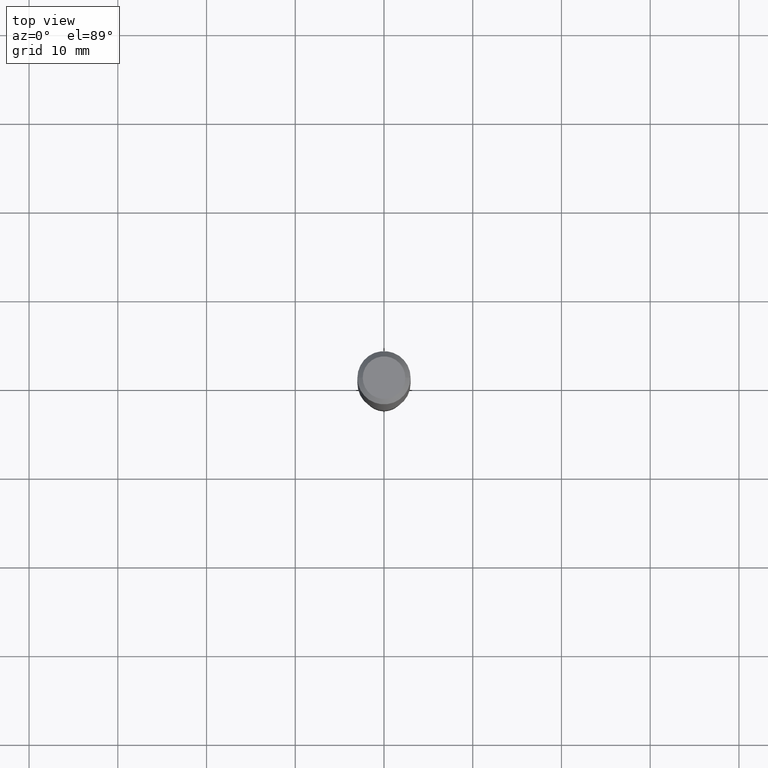
[diagram: clean part render]
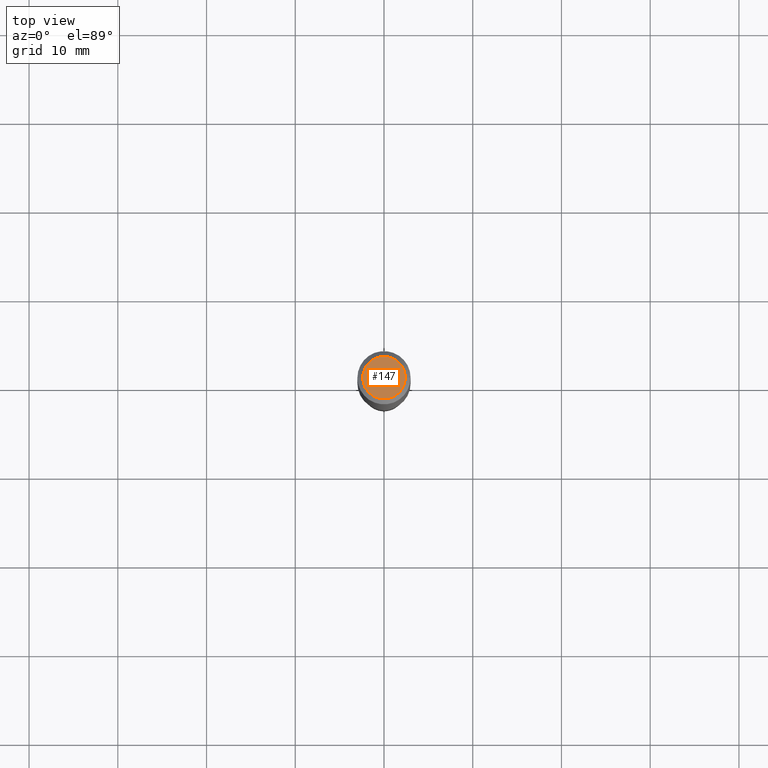
[diagram: same view with one face highlighted and labeled with its STEP entity id]
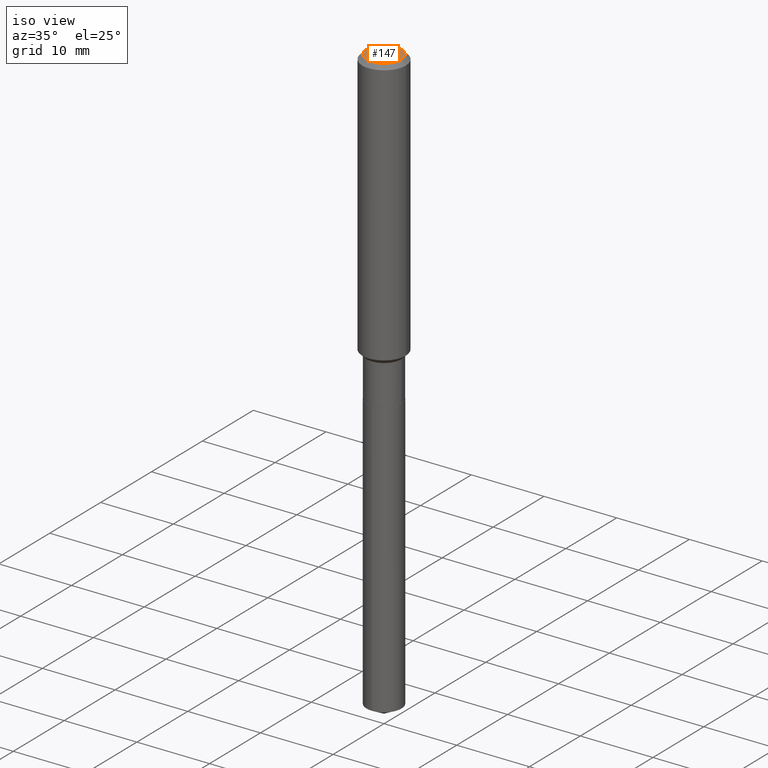
[diagram: same view with one face highlighted and labeled with its STEP entity id]
A machine part, top view. The second image highlights one B-rep face of the part: STEP entity #147.
A second angle (iso view) of the same face is appended — the face is thin or edge-on in the first view.
In plain terms, the highlighted planar face has unit normal (0, -0, -1).
Its self-contained STEP definition (entity closure, byte-faithful):
#23 = CARTESIAN_POINT ( 'NONE',  ( -0.09447999999999998066, 7.009847083995354710E-16, -1.928573779297727792E-17 ) ) ;
#47 = DIRECTION ( 'NONE',  ( -1.000000000000000000, 6.982962677686265922E-15, -4.876176775795935793E-29 ) ) ;
#67 = DIRECTION ( 'NONE',  ( 1.000000000000000000, -6.982962677686267499E-15, 4.875432709231658792E-29 ) ) ;
#79 = CARTESIAN_POINT ( 'NONE',  ( 2.358133508849003952E-46, -3.366789680499277518E-32, -9.642868896486260050E-18 ) ) ;
#80 = ORIENTED_EDGE ( 'NONE', *, *, #365, .T. ) ;
#88 = DIRECTION ( 'NONE',  ( 1.000000000000000000, -6.982962677686267499E-15, 4.875432709231658792E-29 ) ) ;
#112 = ORIENTED_EDGE ( 'NONE', *, *, #161, .T. ) ;
#135 = EDGE_LOOP ( 'NONE', ( #80, #112 ) ) ;
#144 = CARTESIAN_POINT ( 'NONE',  ( 0.09447999999999998066, -7.704367267948738690E-16, -1.928573779296752193E-17 ) ) ;
#147 = ADVANCED_FACE ( 'NONE', ( #155 ), #266, .F. ) ;
#155 = FACE_OUTER_BOUND ( 'NONE', #135, .T. ) ;
#161 = EDGE_CURVE ( 'NONE', #424, #194, #443, .T. ) ;
#173 = AXIS2_PLACEMENT_3D ( 'NONE', #364, #336, #67 ) ;
#194 = VERTEX_POINT ( 'NONE', #23 ) ;
#229 = CARTESIAN_POINT ( 'NONE',  ( 4.716267017698007905E-46, -6.733579360998555036E-32, -1.928573779297252010E-17 ) ) ;
#266 = PLANE ( 'NONE',  #367 ) ;
#283 = DIRECTION ( 'NONE',  ( 2.438088387897960049E-29, -3.491481338843145188E-15, -1.000000000000000000 ) ) ;
#312 = AXIS2_PLACEMENT_3D ( 'NONE', #229, #389, #88 ) ;
#336 = DIRECTION ( 'NONE',  ( -2.445468806185136597E-29, 3.491481338843145583E-15, 1.000000000000000000 ) ) ;
#356 = CIRCLE ( 'NONE', #173, 0.09447999999999998066 ) ;
#364 = CARTESIAN_POINT ( 'NONE',  ( 4.716267017698007905E-46, -6.733579360998555036E-32, -1.928573779297252010E-17 ) ) ;
#365 = EDGE_CURVE ( 'NONE', #194, #424, #356, .T. ) ;
#367 = AXIS2_PLACEMENT_3D ( 'NONE', #79, #283, #47 ) ;
#389 = DIRECTION ( 'NONE',  ( -2.445468806185136597E-29, 3.491481338843145583E-15, 1.000000000000000000 ) ) ;
#424 = VERTEX_POINT ( 'NONE', #144 ) ;
#443 = CIRCLE ( 'NONE', #312, 0.09447999999999998066 ) ;